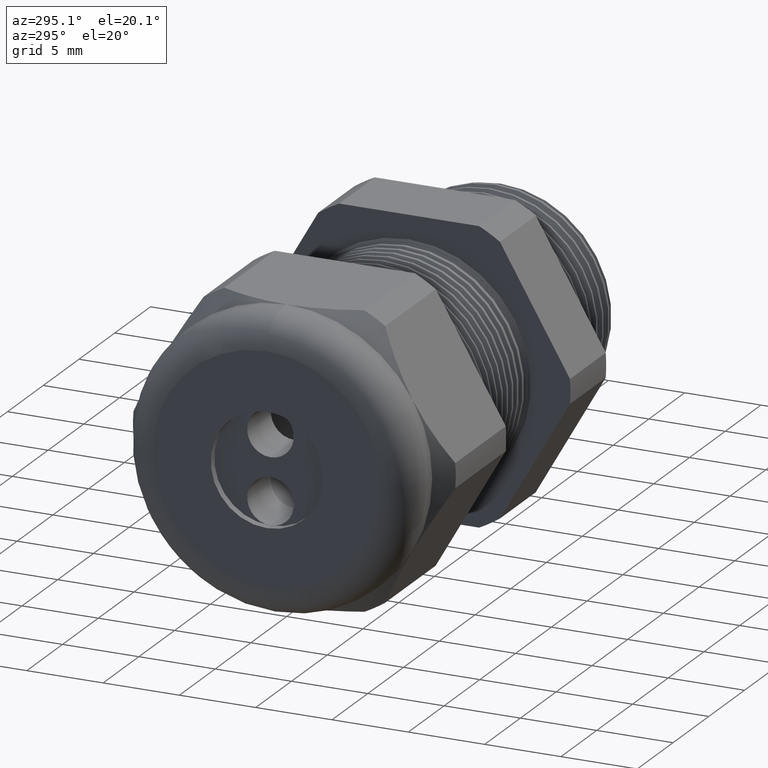
[diagram: clean part render]
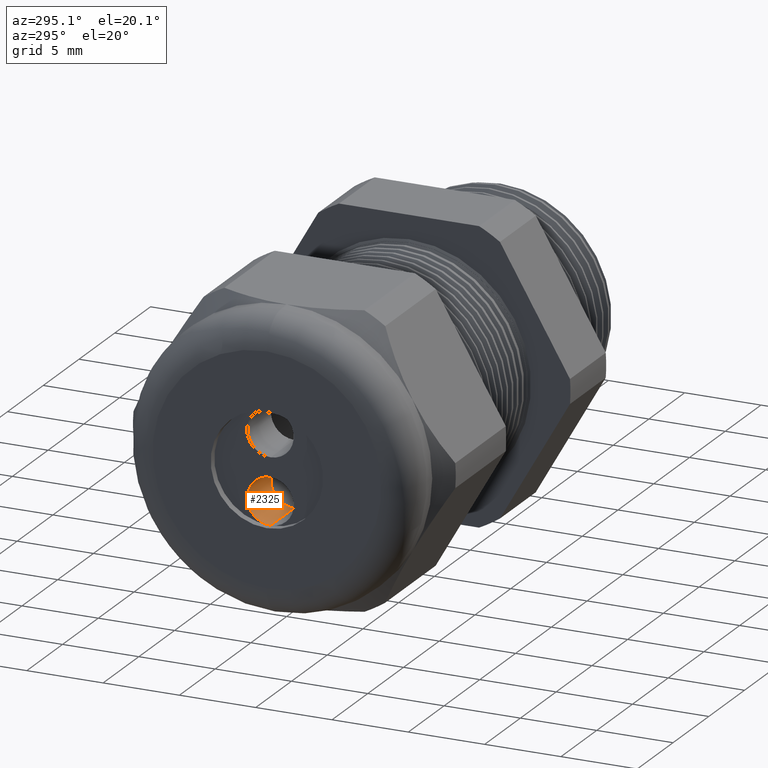
[diagram: same view with one face highlighted and labeled with its STEP entity id]
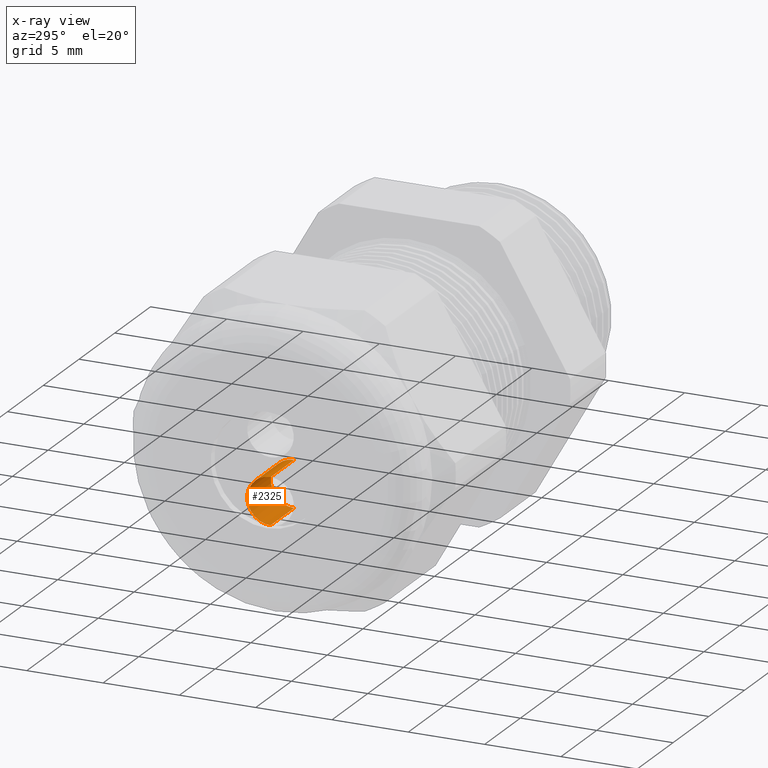
[diagram: x-ray of the same camera — body ghosted, the highlighted face saturated]
A machine part, auxiliary view. The second image highlights one B-rep face of the part: STEP entity #2325.
The next image is the same camera in x-ray: the body ghosted, the highlighted face saturated — about 0% of this face is hidden behind the body in this view.
In plain terms, the highlighted cylindrical surface (edge-blend (fillet) strip) has radius 1.524 mm, axis along (-1, 0, 0).
Its self-contained STEP definition (entity closure, byte-faithful):
#55 = DIRECTION ( 'NONE',  ( 0.0000000000000000000, 0.0000000000000000000, 1.000000000000000000 ) ) ;
#56 = DIRECTION ( 'NONE',  ( -1.000000000000000000, 0.0000000000000000000, 0.0000000000000000000 ) ) ;
#57 = AXIS2_PLACEMENT_3D ( 'NONE', #60, #56, #55 ) ;
#58 = CYLINDRICAL_SURFACE ( 'NONE', #57, 0.05999999999999999800 ) ;
#60 = CARTESIAN_POINT ( 'NONE',  ( 0.0000000000000000000, 0.0000000000000000000, -0.08475999999999998800 ) ) ;
#66 = FACE_OUTER_BOUND ( 'NONE', #2326, .T. ) ;
#155 = DIRECTION ( 'NONE',  ( 0.0000000000000000000, 0.0000000000000000000, 1.000000000000000000 ) ) ;
#156 = DIRECTION ( 'NONE',  ( -1.000000000000000000, 0.0000000000000000000, 0.0000000000000000000 ) ) ;
#157 = CARTESIAN_POINT ( 'NONE',  ( -1.269999999999999800, 0.0000000000000000000, -0.08475999999999998800 ) ) ;
#158 = AXIS2_PLACEMENT_3D ( 'NONE', #157, #156, #155 ) ;
#159 = CIRCLE ( 'NONE', #158, 0.05999999999999999800 ) ;
#234 = DIRECTION ( 'NONE',  ( -1.000000000000000000, 0.0000000000000000000, 0.0000000000000000000 ) ) ;
#235 = VECTOR ( 'NONE', #234, 39.37007874015748100 ) ;
#236 = CARTESIAN_POINT ( 'NONE',  ( 0.0000000000000000000, 7.347880794884118400E-018, -0.1447600000000000000 ) ) ;
#237 = LINE ( 'NONE', #236, #235 ) ;
#248 = CARTESIAN_POINT ( 'NONE',  ( -1.269999999999999800, 7.347880794884118400E-018, -0.1447600000000000000 ) ) ;
#249 = CARTESIAN_POINT ( 'NONE',  ( -1.269999999999999800, 0.0000000000000000000, -0.02475999999999999400 ) ) ;
#255 = CARTESIAN_POINT ( 'NONE',  ( -1.139999999999999900, 0.0000000000000000000, -0.02475999999999999400 ) ) ;
#289 = CARTESIAN_POINT ( 'NONE',  ( -1.139999999999999900, 7.347880794884118400E-018, -0.1447600000000000000 ) ) ;
#326 = DIRECTION ( 'NONE',  ( -1.000000000000000000, 0.0000000000000000000, 0.0000000000000000000 ) ) ;
#327 = VECTOR ( 'NONE', #326, 39.37007874015748100 ) ;
#328 = CARTESIAN_POINT ( 'NONE',  ( 0.0000000000000000000, 0.0000000000000000000, -0.02475999999999999400 ) ) ;
#329 = LINE ( 'NONE', #328, #327 ) ;
#2272 = EDGE_CURVE ( 'NONE', #2429, #2443, #4806, .T. ) ;
#2325 = ADVANCED_FACE ( 'NONE', ( #66 ), #58, .F. ) ;
#2326 = EDGE_LOOP ( 'NONE', ( #2327, #2328, #2329, #2330 ) ) ;
#2327 = ORIENTED_EDGE ( 'NONE', *, *, #2438, .F. ) ;
#2328 = ORIENTED_EDGE ( 'NONE', *, *, #2272, .F. ) ;
#2329 = ORIENTED_EDGE ( 'NONE', *, *, #2486, .T. ) ;
#2330 = ORIENTED_EDGE ( 'NONE', *, *, #2385, .T. ) ;
#2385 = EDGE_CURVE ( 'NONE', #2431, #2433, #159, .T. ) ;
#2429 = VERTEX_POINT ( 'NONE', #255 ) ;
#2431 = VERTEX_POINT ( 'NONE', #249 ) ;
#2433 = VERTEX_POINT ( 'NONE', #248 ) ;
#2438 = EDGE_CURVE ( 'NONE', #2443, #2433, #237, .T. ) ;
#2443 = VERTEX_POINT ( 'NONE', #289 ) ;
#2486 = EDGE_CURVE ( 'NONE', #2429, #2431, #329, .T. ) ;
#4802 = DIRECTION ( 'NONE',  ( 0.0000000000000000000, 0.0000000000000000000, 1.000000000000000000 ) ) ;
#4803 = DIRECTION ( 'NONE',  ( -1.000000000000000000, 0.0000000000000000000, 0.0000000000000000000 ) ) ;
#4804 = CARTESIAN_POINT ( 'NONE',  ( -1.139999999999999900, 0.0000000000000000000, -0.08475999999999998800 ) ) ;
#4805 = AXIS2_PLACEMENT_3D ( 'NONE', #4804, #4803, #4802 ) ;
#4806 = CIRCLE ( 'NONE', #4805, 0.05999999999999999800 ) ;